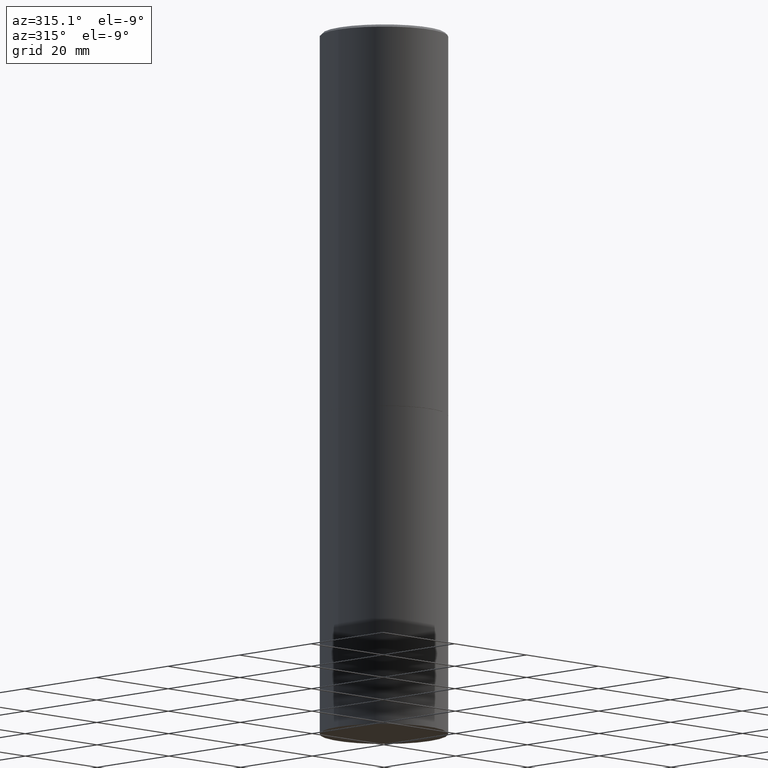
[diagram: clean part render]
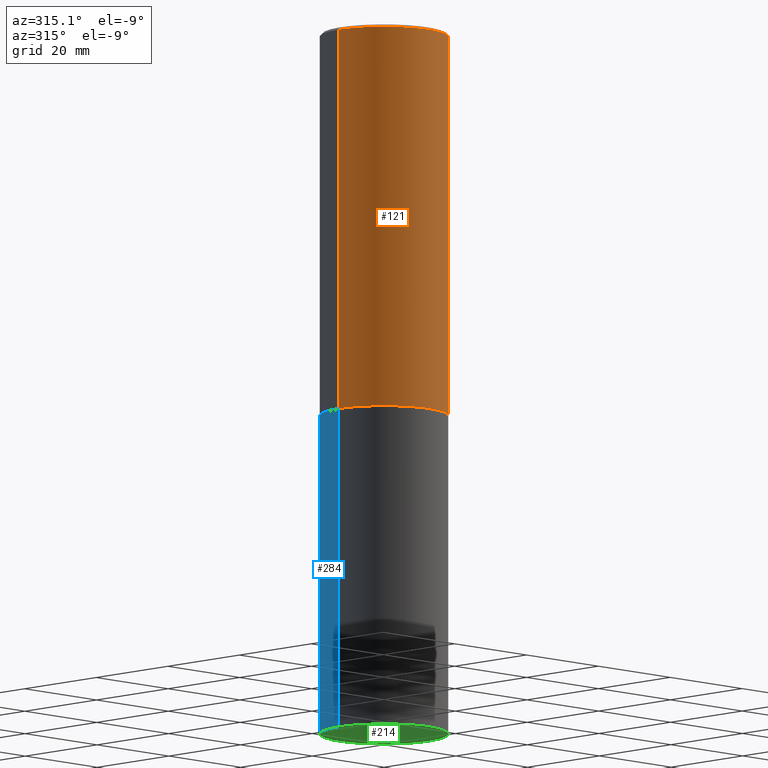
[diagram: same view with three faces highlighted in distinct colors, each labeled with its STEP entity id]
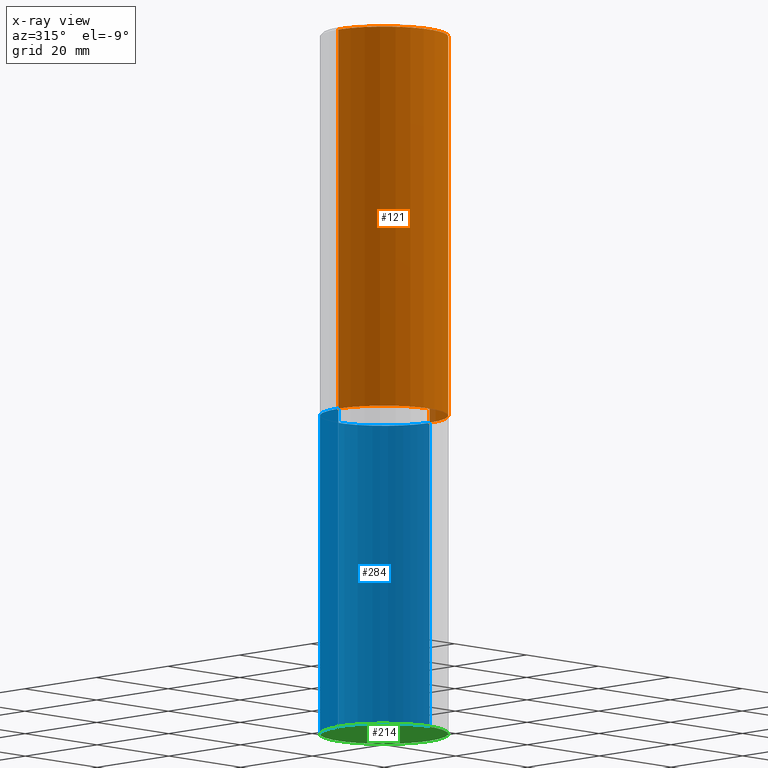
[diagram: x-ray of the same camera — body ghosted, the three highlighted faces saturated]
A machine part, auxiliary view with three faces highlighted in distinct colors.
The next image is the same camera in x-ray (body ghosted, the three faces saturated) — at least one of them is partly hidden behind the body in this view.
Their STEP definitions:

[orange] entity #121 — the highlighted cylindrical surface (partial cylindrical patch) has radius 12.7 mm, axis along (-0, 0, 1).
#6 = ORIENTED_EDGE ( 'NONE', *, *, #265, .T. ) ;
#17 = VERTEX_POINT ( 'NONE', #273 ) ;
#24 = DIRECTION ( 'NONE',  ( -2.445468806185136597E-29, 3.491481338843145583E-15, 1.000000000000000000 ) ) ;
#52 = DIRECTION ( 'NONE',  ( 1.000000000000000000, -6.982962677686266711E-15, 0.000000000000000000 ) ) ;
#60 = CIRCLE ( 'NONE', #244, 0.4999999999999997224 ) ;
#65 = AXIS2_PLACEMENT_3D ( 'NONE', #277, #24, #52 ) ;
#68 = DIRECTION ( 'NONE',  ( -2.445468806185136877E-29, 3.491481338843145188E-15, 1.000000000000000000 ) ) ;
#71 = ORIENTED_EDGE ( 'NONE', *, *, #82, .F. ) ;
#80 = CARTESIAN_POINT ( 'NONE',  ( -0.4999999999999997224, 3.421651712066268085E-15, -0.02000000000000012879 ) ) ;
#82 = EDGE_CURVE ( 'NONE', #288, #130, #249, .T. ) ;
#90 = DIRECTION ( 'NONE',  ( 1.000000000000000000, -6.982962677686266711E-15, 0.000000000000000000 ) ) ;
#106 = CARTESIAN_POINT ( 'NONE',  ( -0.4999999999999998335, 3.552713678800499746E-15, -2.459467545127452330E-29 ) ) ;
#109 = DIRECTION ( 'NONE',  ( 1.000000000000000000, -6.982962677686267499E-15, 4.876176775795936353E-29 ) ) ;
#111 = CARTESIAN_POINT ( 'NONE',  ( 0.4999999999999997224, -3.500078625662627502E-15, -0.02000000000000012879 ) ) ;
#112 = DIRECTION ( 'NONE',  ( -2.445468806185136877E-29, 3.491481338843145188E-15, 1.000000000000000000 ) ) ;
#121 = ADVANCED_FACE ( 'NONE', ( #167 ), #222, .T. ) ;
#130 = VERTEX_POINT ( 'NONE', #80 ) ;
#141 = EDGE_CURVE ( 'NONE', #288, #17, #294, .T. ) ;
#144 = ORIENTED_EDGE ( 'NONE', *, *, #141, .T. ) ;
#146 = CARTESIAN_POINT ( 'NONE',  ( 4.890937612370304688E-31, -6.982962677686335982E-17, -0.02000000000000012879 ) ) ;
#157 = EDGE_LOOP ( 'NONE', ( #71, #144, #6, #250 ) ) ;
#167 = FACE_OUTER_BOUND ( 'NONE', #157, .T. ) ;
#184 = VERTEX_POINT ( 'NONE', #111 ) ;
#221 = LINE ( 'NONE', #283, #300 ) ;
#222 = CYLINDRICAL_SURFACE ( 'NONE', #243, 0.4999999999999998335 ) ;
#243 = AXIS2_PLACEMENT_3D ( 'NONE', #331, #280, #109 ) ;
#244 = AXIS2_PLACEMENT_3D ( 'NONE', #146, #340, #90 ) ;
#249 = LINE ( 'NONE', #106, #281 ) ;
#250 = ORIENTED_EDGE ( 'NONE', *, *, #297, .F. ) ;
#265 = EDGE_CURVE ( 'NONE', #17, #184, #221, .T. ) ;
#273 = CARTESIAN_POINT ( 'NONE',  ( 0.5000000000000000000, -1.396243387403372828E-14, -2.999000000000000554 ) ) ;
#277 = CARTESIAN_POINT ( 'NONE',  ( 7.333960949749226429E-29, -1.047095253519059492E-14, -2.999000000000000554 ) ) ;
#280 = DIRECTION ( 'NONE',  ( -2.445468806185136597E-29, 3.491481338843145583E-15, 1.000000000000000000 ) ) ;
#281 = VECTOR ( 'NONE', #68, 39.37007874015748143 ) ;
#283 = CARTESIAN_POINT ( 'NONE',  ( 0.4999999999999998335, -3.491481338843132566E-15, 2.438088387897967336E-29 ) ) ;
#288 = VERTEX_POINT ( 'NONE', #337 ) ;
#294 = CIRCLE ( 'NONE', #65, 0.5000000000000000000 ) ;
#297 = EDGE_CURVE ( 'NONE', #130, #184, #60, .T. ) ;
#300 = VECTOR ( 'NONE', #112, 39.37007874015748143 ) ;
#331 = CARTESIAN_POINT ( 'NONE',  ( 0.000000000000000000, 0.000000000000000000, 0.000000000000000000 ) ) ;
#337 = CARTESIAN_POINT ( 'NONE',  ( -0.5000000000000000000, -1.717677402183226998E-15, -2.999000000000000554 ) ) ;
#340 = DIRECTION ( 'NONE',  ( -2.445468806185136597E-29, 3.491481338843145583E-15, 1.000000000000000000 ) ) ;

[blue] entity #284 — the highlighted cylindrical surface (partial cylindrical patch) has radius 12.7 mm, axis along (-0, 0, 1).
#2 = FACE_OUTER_BOUND ( 'NONE', #155, .T. ) ;
#7 = CARTESIAN_POINT ( 'NONE',  ( 1.345007843401824904E-28, -1.920314736363729972E-14, -5.500000000000000000 ) ) ;
#9 = AXIS2_PLACEMENT_3D ( 'NONE', #260, #320, #10 ) ;
#10 = DIRECTION ( 'NONE',  ( 1.000000000000000000, -6.982962677686266711E-15, 4.876176775795935793E-29 ) ) ;
#22 = CARTESIAN_POINT ( 'NONE',  ( 0.5000000000000000000, -2.269462870248043307E-14, -5.500000000000000000 ) ) ;
#28 = ORIENTED_EDGE ( 'NONE', *, *, #329, .F. ) ;
#54 = AXIS2_PLACEMENT_3D ( 'NONE', #7, #62, #61 ) ;
#56 = DIRECTION ( 'NONE',  ( -2.445468806185136877E-29, 3.491481338843145188E-15, 1.000000000000000000 ) ) ;
#61 = DIRECTION ( 'NONE',  ( 1.000000000000000000, -6.982962677686262766E-15, 0.000000000000000000 ) ) ;
#62 = DIRECTION ( 'NONE',  ( -2.445468806185136597E-29, 3.491481338843145583E-15, 1.000000000000000000 ) ) ;
#88 = CYLINDRICAL_SURFACE ( 'NONE', #9, 0.5000000000000000000 ) ;
#89 = VECTOR ( 'NONE', #120, 39.37007874015748143 ) ;
#95 = VERTEX_POINT ( 'NONE', #304 ) ;
#97 = VECTOR ( 'NONE', #56, 39.37007874015748143 ) ;
#115 = ORIENTED_EDGE ( 'NONE', *, *, #268, .F. ) ;
#118 = DIRECTION ( 'NONE',  ( 1.000000000000000000, -6.982962677686266711E-15, 0.000000000000000000 ) ) ;
#120 = DIRECTION ( 'NONE',  ( -2.445468806185136877E-29, 3.491481338843145188E-15, 1.000000000000000000 ) ) ;
#132 = CIRCLE ( 'NONE', #54, 0.5000000000000000000 ) ;
#147 = CARTESIAN_POINT ( 'NONE',  ( 0.5000000000000000000, -1.396592535537256813E-14, -2.999999999999999556 ) ) ;
#155 = EDGE_LOOP ( 'NONE', ( #366, #272, #28, #115 ) ) ;
#172 = DIRECTION ( 'NONE',  ( -2.445468806185136597E-29, 3.491481338843145583E-15, 1.000000000000000000 ) ) ;
#176 = CIRCLE ( 'NONE', #258, 0.5000000000000000000 ) ;
#177 = VERTEX_POINT ( 'NONE', #22 ) ;
#232 = CARTESIAN_POINT ( 'NONE',  ( 7.336406418555408669E-29, -1.047444401652943478E-14, -2.999999999999999556 ) ) ;
#238 = CARTESIAN_POINT ( 'NONE',  ( -0.5000000000000000000, -1.128608201128286632E-14, -5.500000000000000000 ) ) ;
#258 = AXIS2_PLACEMENT_3D ( 'NONE', #232, #172, #118 ) ;
#260 = CARTESIAN_POINT ( 'NONE',  ( 0.000000000000000000, 0.000000000000000000, 0.000000000000000000 ) ) ;
#268 = EDGE_CURVE ( 'NONE', #177, #303, #330, .T. ) ;
#272 = ORIENTED_EDGE ( 'NONE', *, *, #339, .T. ) ;
#284 = ADVANCED_FACE ( 'NONE', ( #2 ), #88, .T. ) ;
#303 = VERTEX_POINT ( 'NONE', #147 ) ;
#304 = CARTESIAN_POINT ( 'NONE',  ( -0.5000000000000000000, -1.128608201128286632E-14, -2.999999999999999556 ) ) ;
#312 = CARTESIAN_POINT ( 'NONE',  ( 0.5000000000000000000, -3.491481338843133355E-15, 2.438088387897967896E-29 ) ) ;
#317 = LINE ( 'NONE', #342, #89 ) ;
#320 = DIRECTION ( 'NONE',  ( -2.445468806185136597E-29, 3.491481338843145583E-15, 1.000000000000000000 ) ) ;
#325 = VERTEX_POINT ( 'NONE', #238 ) ;
#329 = EDGE_CURVE ( 'NONE', #303, #95, #176, .T. ) ;
#330 = LINE ( 'NONE', #312, #97 ) ;
#339 = EDGE_CURVE ( 'NONE', #325, #95, #317, .T. ) ;
#342 = CARTESIAN_POINT ( 'NONE',  ( -0.5000000000000000000, 3.552713678800500929E-15, -2.459467545127452891E-29 ) ) ;
#344 = EDGE_CURVE ( 'NONE', #177, #325, #132, .T. ) ;
#366 = ORIENTED_EDGE ( 'NONE', *, *, #344, .T. ) ;

[green] entity #214 — the highlighted planar face has unit normal (0, -0, -1).
#4 = EDGE_CURVE ( 'NONE', #325, #177, #262, .T. ) ;
#7 = CARTESIAN_POINT ( 'NONE',  ( 1.345007843401824904E-28, -1.920314736363729972E-14, -5.500000000000000000 ) ) ;
#15 = CARTESIAN_POINT ( 'NONE',  ( 1.345007843401824904E-28, -1.920314736363729972E-14, -5.500000000000000000 ) ) ;
#21 = AXIS2_PLACEMENT_3D ( 'NONE', #49, #193, #85 ) ;
#22 = CARTESIAN_POINT ( 'NONE',  ( 0.5000000000000000000, -2.269462870248043307E-14, -5.500000000000000000 ) ) ;
#43 = DIRECTION ( 'NONE',  ( 1.000000000000000000, -6.982962677686262766E-15, 0.000000000000000000 ) ) ;
#49 = CARTESIAN_POINT ( 'NONE',  ( 3.491481338843267462E-15, 0.4999999999999807931, -5.500000000000001776 ) ) ;
#54 = AXIS2_PLACEMENT_3D ( 'NONE', #7, #62, #61 ) ;
#61 = DIRECTION ( 'NONE',  ( 1.000000000000000000, -6.982962677686262766E-15, 0.000000000000000000 ) ) ;
#62 = DIRECTION ( 'NONE',  ( -2.445468806185136597E-29, 3.491481338843145583E-15, 1.000000000000000000 ) ) ;
#85 = DIRECTION ( 'NONE',  ( -1.000000000000000000, 6.982962677686265922E-15, -4.876176775795935793E-29 ) ) ;
#108 = PLANE ( 'NONE',  #21 ) ;
#132 = CIRCLE ( 'NONE', #54, 0.5000000000000000000 ) ;
#177 = VERTEX_POINT ( 'NONE', #22 ) ;
#182 = ORIENTED_EDGE ( 'NONE', *, *, #4, .F. ) ;
#193 = DIRECTION ( 'NONE',  ( 2.438088387897960049E-29, -3.491481338843145188E-15, -1.000000000000000000 ) ) ;
#214 = ADVANCED_FACE ( 'NONE', ( #251 ), #108, .T. ) ;
#238 = CARTESIAN_POINT ( 'NONE',  ( -0.5000000000000000000, -1.128608201128286632E-14, -5.500000000000000000 ) ) ;
#251 = FACE_OUTER_BOUND ( 'NONE', #267, .T. ) ;
#262 = CIRCLE ( 'NONE', #363, 0.5000000000000000000 ) ;
#267 = EDGE_LOOP ( 'NONE', ( #276, #182 ) ) ;
#276 = ORIENTED_EDGE ( 'NONE', *, *, #344, .F. ) ;
#299 = DIRECTION ( 'NONE',  ( -2.445468806185136597E-29, 3.491481338843145583E-15, 1.000000000000000000 ) ) ;
#325 = VERTEX_POINT ( 'NONE', #238 ) ;
#344 = EDGE_CURVE ( 'NONE', #177, #325, #132, .T. ) ;
#363 = AXIS2_PLACEMENT_3D ( 'NONE', #15, #299, #43 ) ;